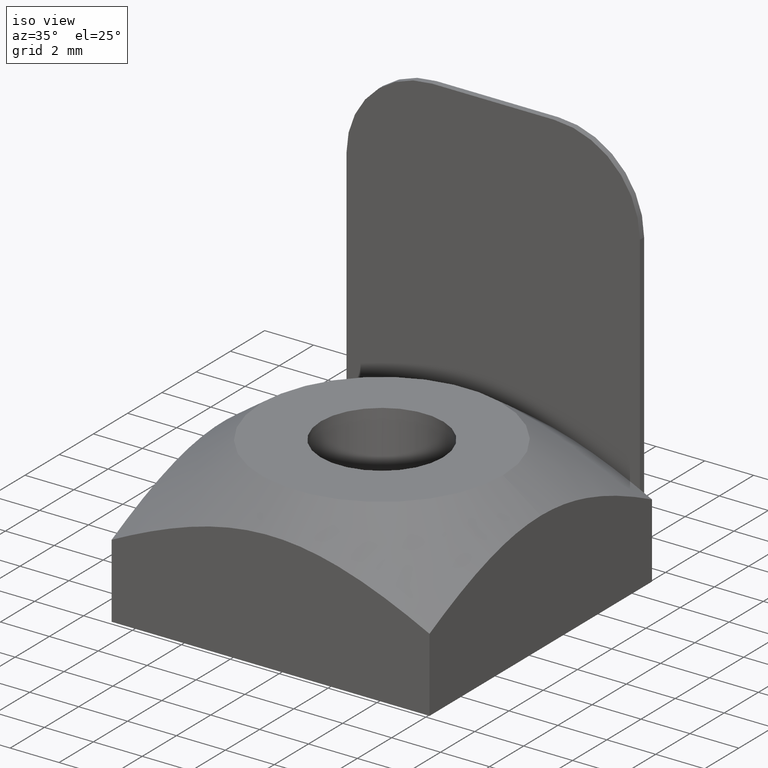
[diagram: clean part render]
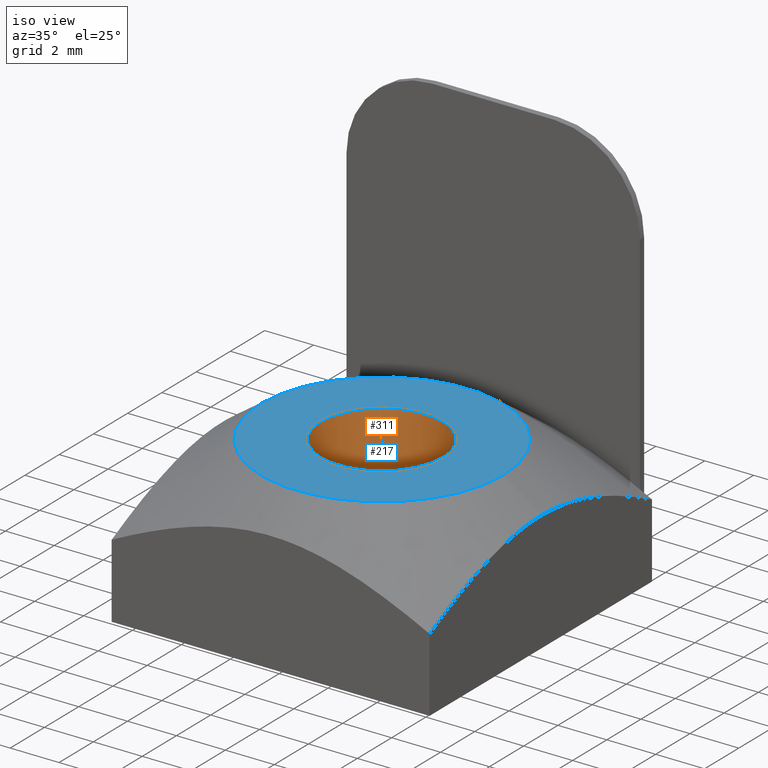
[diagram: same view with the hole feature highlighted: cylindrical wall and planar end face, labeled with their STEP entity ids]
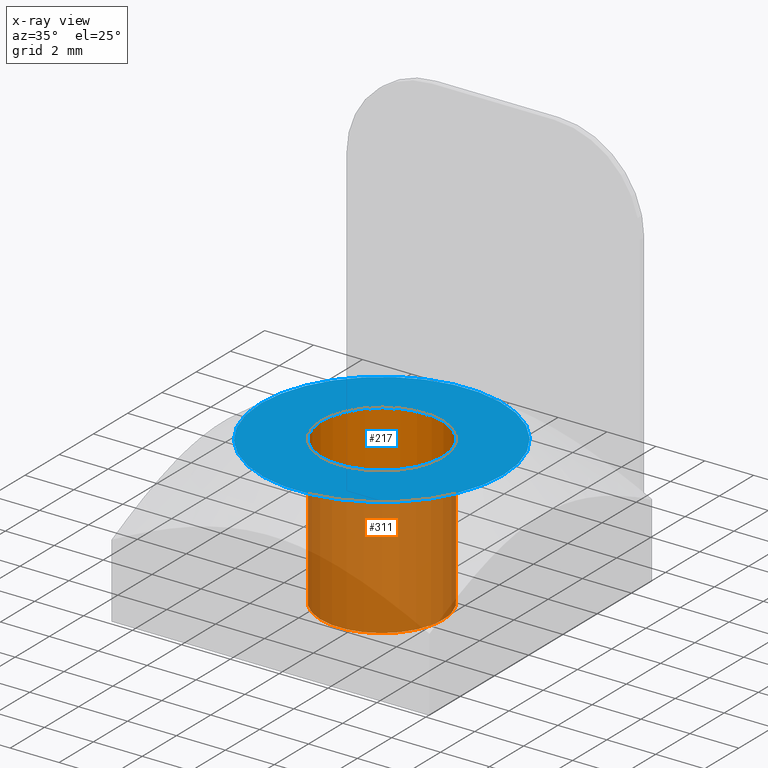
[diagram: x-ray of the same camera — body ghosted, the hole faces saturated]
A machine part, iso view. The highlighted faces form one hole feature of diameter 5 mm: the cylindrical wall (entity #311, orange) and its adjacent planar end face (entity #217, blue) — they share a circular edge in the B-rep.
The next image is the same camera in x-ray (body ghosted, the hole faces saturated) — the bore reads through the body.
Wall:
#197=CARTESIAN_POINT('',(-2.500000000000000,0.0,6.0));
#198=VERTEX_POINT('',#197);
#199=CARTESIAN_POINT('',(2.500000000000000,0.0,6.0));
#200=VERTEX_POINT('',#199);
#201=CARTESIAN_POINT('',(0.0,0.0,6.0));
#202=DIRECTION('',(0.0,0.0,1.0));
#203=DIRECTION('',(1.0,0.0,0.0));
#204=AXIS2_PLACEMENT_3D('',#201,#202,#203);
#205=CIRCLE('',#204,2.500000000000000);
#206=EDGE_CURVE('',#198,#200,#205,.T.);
#208=CARTESIAN_POINT('',(0.0,0.0,6.0));
#209=DIRECTION('',(0.0,0.0,1.0));
#210=DIRECTION('',(1.0,0.0,0.0));
#211=AXIS2_PLACEMENT_3D('',#208,#209,#210);
#212=CIRCLE('',#211,2.500000000000000);
#213=EDGE_CURVE('',#200,#198,#212,.T.);
#229=CARTESIAN_POINT('',(-2.500000000000000,0.0,0.0));
#230=VERTEX_POINT('',#229);
#231=CARTESIAN_POINT('',(2.500000000000000,0.0,0.0));
#232=VERTEX_POINT('',#231);
#233=CARTESIAN_POINT('',(0.0,0.0,0.0));
#234=DIRECTION('',(0.0,0.0,-1.0));
#235=DIRECTION('',(1.0,0.0,0.0));
#236=AXIS2_PLACEMENT_3D('',#233,#234,#235);
#237=CIRCLE('',#236,2.500000000000000);
#238=EDGE_CURVE('',#230,#232,#237,.T.);
#240=CARTESIAN_POINT('',(0.0,0.0,0.0));
#241=DIRECTION('',(0.0,0.0,-1.0));
#242=DIRECTION('',(1.0,0.0,0.0));
#243=AXIS2_PLACEMENT_3D('',#240,#241,#242);
#244=CIRCLE('',#243,2.500000000000000);
#245=EDGE_CURVE('',#232,#230,#244,.T.);
#293=CARTESIAN_POINT('',(0.0,0.0,6.0));
#294=DIRECTION('',(0.0,0.0,1.0));
#295=DIRECTION('',(1.0,0.0,0.0));
#296=AXIS2_PLACEMENT_3D('',#293,#294,#295);
#297=CYLINDRICAL_SURFACE('',#296,2.500000000000000);
#298=CARTESIAN_POINT('',(2.500000000000000,0.0,6.0));
#299=DIRECTION('',(0.0,0.0,-1.0));
#300=VECTOR('',#299,6.0);
#301=LINE('',#298,#300);
#302=EDGE_CURVE('',#200,#232,#301,.T.);
#303=ORIENTED_EDGE('',*,*,#302,.T.);
#304=ORIENTED_EDGE('',*,*,#245,.T.);
#305=ORIENTED_EDGE('',*,*,#238,.T.);
#306=ORIENTED_EDGE('',*,*,#302,.F.);
#307=ORIENTED_EDGE('',*,*,#213,.T.);
#308=ORIENTED_EDGE('',*,*,#206,.T.);
#309=EDGE_LOOP('',(#303,#304,#305,#306,#307,#308));
#310=FACE_OUTER_BOUND('',#309,.T.);
#311=ADVANCED_FACE('',(#310),#297,.F.);
End face:
#172=CARTESIAN_POINT('',(-7.800004734302775,-7.800004734271170,6.0));
#173=DIRECTION('',(0.0,0.0,1.0));
#174=DIRECTION('',(1.0,0.0,0.0));
#175=AXIS2_PLACEMENT_3D('',#172,#173,#174);
#176=PLANE('',#175);
#177=CARTESIAN_POINT('',(-4.957126238646652,0.0,6.0));
#178=VERTEX_POINT('',#177);
#179=CARTESIAN_POINT('',(4.957126238646652,0.0,6.0));
#180=VERTEX_POINT('',#179);
#181=CARTESIAN_POINT('',(0.0,0.0,6.0));
#182=DIRECTION('',(0.0,0.0,-1.0));
#183=DIRECTION('',(1.0,0.0,0.0));
#184=AXIS2_PLACEMENT_3D('',#181,#182,#183);
#185=CIRCLE('',#184,4.957126238646652);
#186=EDGE_CURVE('',#178,#180,#185,.T.);
#187=ORIENTED_EDGE('',*,*,#186,.F.);
#188=CARTESIAN_POINT('',(0.0,0.0,6.0));
#189=DIRECTION('',(0.0,0.0,-1.0));
#190=DIRECTION('',(1.0,0.0,0.0));
#191=AXIS2_PLACEMENT_3D('',#188,#189,#190);
#192=CIRCLE('',#191,4.957126238646652);
#193=EDGE_CURVE('',#180,#178,#192,.T.);
#194=ORIENTED_EDGE('',*,*,#193,.F.);
#195=EDGE_LOOP('',(#187,#194));
#196=FACE_OUTER_BOUND('',#195,.T.);
#197=CARTESIAN_POINT('',(-2.500000000000000,0.0,6.0));
#198=VERTEX_POINT('',#197);
#199=CARTESIAN_POINT('',(2.500000000000000,0.0,6.0));
#200=VERTEX_POINT('',#199);
#201=CARTESIAN_POINT('',(0.0,0.0,6.0));
#202=DIRECTION('',(0.0,0.0,1.0));
#203=DIRECTION('',(1.0,0.0,0.0));
#204=AXIS2_PLACEMENT_3D('',#201,#202,#203);
#205=CIRCLE('',#204,2.500000000000000);
#206=EDGE_CURVE('',#198,#200,#205,.T.);
#207=ORIENTED_EDGE('',*,*,#206,.F.);
#208=CARTESIAN_POINT('',(0.0,0.0,6.0));
#209=DIRECTION('',(0.0,0.0,1.0));
#210=DIRECTION('',(1.0,0.0,0.0));
#211=AXIS2_PLACEMENT_3D('',#208,#209,#210);
#212=CIRCLE('',#211,2.500000000000000);
#213=EDGE_CURVE('',#200,#198,#212,.T.);
#214=ORIENTED_EDGE('',*,*,#213,.F.);
#215=EDGE_LOOP('',(#207,#214));
#216=FACE_BOUND('',#215,.T.);
#217=ADVANCED_FACE('',(#196,#216),#176,.T.);